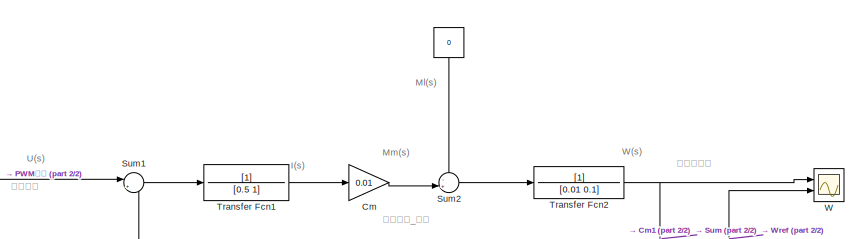
[diagram: root canvas - part 1/2, top right region]
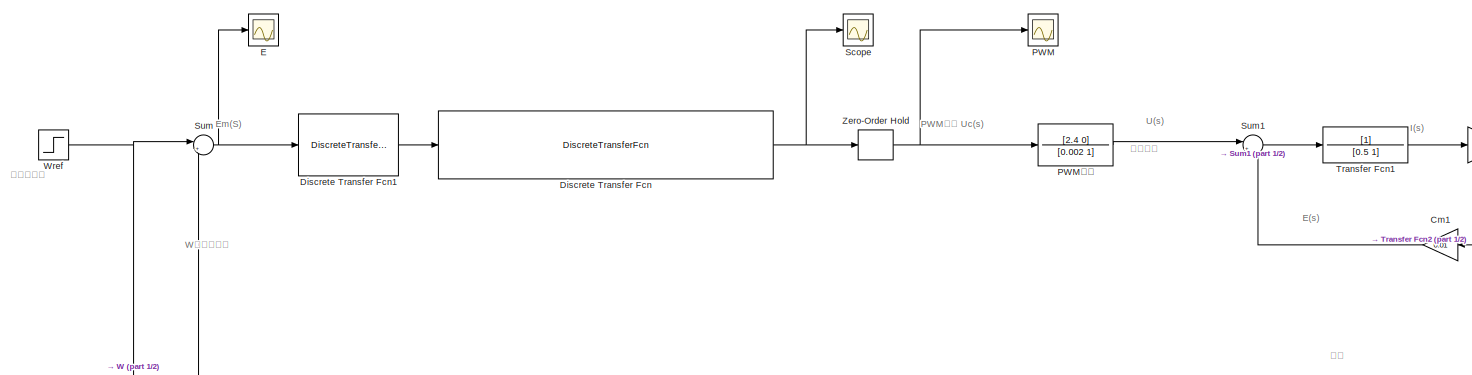
[diagram: root canvas - part 2/2, full width, middle band]
MODEL slx_3e21689289b2
KIND model
CONFIG AbsTol = auto
CONFIG EnableMultiTasking = off
CONFIG FixedStep = auto
CONFIG MaxStep = auto
CONFIG MinStep = auto
CONFIG RelTol = 1e-3
CONFIG SampleTimeConstraint = Unconstrained
CONFIG Solver = VariableStepAuto
CONFIG SolverName = VariableStepAuto
CONFIG StartTime = 0.0
CONFIG StopTime = 10
BLOCK [Constant]  
  Value = 0
BLOCK [Gain] Cm
  Gain = 0.01
  OutDataTypeStr = Inherit: Inherit via internal rule
  ParamDataTypeStr = Inherit: Inherit via internal rule
  SaturateOnIntegerOverflow = off
BLOCK [Gain] Cm1
  Gain = 0.01
  OutDataTypeStr = Inherit: Inherit via internal rule
  ParamDataTypeStr = Inherit: Inherit via internal rule
  SaturateOnIntegerOverflow = off
BLOCK [DiscreteTransferFcn] Discrete Transfer Fcn
  Denominator = [1 -2.892 2.791 -0.90565 0.005976 0]
  InputPortMap = u0
  Numerator = [0.000001208 0]
  Ports = [1, 1]
  SampleTime = 0.05
BLOCK [DiscreteTransferFcn] Discrete Transfer Fcn1
  Denominator = [1 -1]
  InputPortMap = u0
  Ports = [1, 1]
  SampleTime = 0.05
BLOCK [Scope] E
  Floating = off
  NumInputPorts = 1
  Ports = [1]
  ScopeSpecificationString = Simulink.scopes.TimeScopeBlockCfg('CurrentConfiguration', extmgr.ConfigurationSet(extmgr.Configuration('Core','General UI',true),extmgr.Configuration('Core','Source UI',true),extmgr.Configuration('Sources','WiredSimulink',true,'DataLoggingVariableName','ScopeData1'),extmgr.Configuration('Visuals','Time Domain',true,'SerializedDisplays',{struct('MinYLimReal','-0.59166','MaxYLimReal','1.46316','YLab...<+1442ch>
BLOCK [Scope] PWM
  Floating = off
  NumInputPorts = 1
  Ports = [1]
  ScopeSpecificationString = Simulink.scopes.TimeScopeBlockCfg('CurrentConfiguration', extmgr.ConfigurationSet(extmgr.Configuration('Core','General UI',true),extmgr.Configuration('Core','Source UI',true),extmgr.Configuration('Sources','WiredSimulink',true,'DataLoggingVariableName','ScopeData2'),extmgr.Configuration('Visuals','Time Domain',true,'SerializedDisplays',{struct('MinYLimReal','-11.60328','MaxYLimReal','94.26744','YL...<+1479ch>
BLOCK [TransferFcn] PWM功放
  Denominator = [0.002 1]
  Numerator = [2.4 0]
BLOCK [Scope] Scope
  Floating = off
  NumInputPorts = 1
  Ports = [1]
  ScopeSpecificationString = Simulink.scopes.TimeScopeBlockCfg('CurrentConfiguration', extmgr.ConfigurationSet(extmgr.Configuration('Core','General UI',true),extmgr.Configuration('Core','Source UI',true),extmgr.Configuration('Sources','WiredSimulink',true,'DataLoggingVariableName','ScopeData3'),extmgr.Configuration('Visuals','Time Domain',true,'SerializedDisplays',{struct('MinYLimReal','-1.19692','MaxYLimReal','22.68469','YLa...<+1428ch>
BLOCK [Sum] Sum
  IconShape = round
  InputSameDT = off
  Inputs = |+-
  OutDataTypeStr = Inherit: Inherit via internal rule
  Ports = [2, 1]
  SaturateOnIntegerOverflow = off
BLOCK [Sum] Sum1
  IconShape = round
  InputSameDT = off
  Inputs = |+-
  OutDataTypeStr = Inherit: Inherit via internal rule
  Ports = [2, 1]
  SaturateOnIntegerOverflow = off
BLOCK [Sum] Sum2
  IconShape = round
  InputSameDT = off
  Inputs = -+|
  OutDataTypeStr = Inherit: Inherit via internal rule
  Ports = [2, 1]
  SaturateOnIntegerOverflow = off
BLOCK [TransferFcn] Transfer Fcn1
  Denominator = [0.5 1]
BLOCK [TransferFcn] Transfer Fcn2
  Denominator = [0.01 0.1]
BLOCK [Scope] W
  Floating = off
  NumInputPorts = 2
  Ports = [2]
  ScopeSpecificationString = Simulink.scopes.TimeScopeBlockCfg('CurrentConfiguration', extmgr.ConfigurationSet(extmgr.Configuration('Core','General UI',true),extmgr.Configuration('Core','Source UI',true),extmgr.Configuration('Sources','WiredSimulink',true),extmgr.Configuration('Visuals','Time Domain',true,'SerializedDisplays',{struct('MinYLimReal','-24.96323','MaxYLimReal','224.66907','YLabelReal','','MinYLimMag','0.00000','M...<+1427ch>
BLOCK [Step] Wref
  SampleTime = 0
  Time = 0
BLOCK [ZeroOrderHold] Zero-Order Hold
  SampleTime = 0.05
ANNOTATION (root): W实际角速度
ANNOTATION (root): 被控对象_电机
ANNOTATION (root): 反馈
ANNOTATION (root): E(s)
ANNOTATION (root): Em(S)
ANNOTATION (root): I(s)
ANNOTATION (root): Ml(s)
ANNOTATION (root): Mm(s)
ANNOTATION (root): PWM电压 Uc(s)
ANNOTATION (root): U(s)
ANNOTATION (root): W(s)
ANNOTATION (root): 参考角速度
ANNOTATION (root): 实际角速度
ANNOTATION (root): 输入电压
LINE  :1 -> Sum2:1
LINE Cm1:1 -> Sum1:2
LINE Cm:1 -> Sum2:2
LINE Discrete Transfer Fcn1:1 -> Discrete Transfer Fcn:1
NET Discrete Transfer Fcn:1 -> Scope:1, Zero-Order Hold:1
LINE PWM功放:1 -> Sum1:1
LINE Sum1:1 -> Transfer Fcn1:1
LINE Sum2:1 -> Transfer Fcn2:1
NET Sum:1 -> Discrete Transfer Fcn1:1, E:1
LINE Transfer Fcn1:1 -> Cm:1
NET Transfer Fcn2:1 -> Cm1:1, Sum:2, W:1
NET Wref:1 -> Sum:1, W:2
NET Zero-Order Hold:1 -> PWM:1, PWM功放:1
note: NET lines group one-source signal fan-out (src -> all destinations, sorted); 1:1 wires keep LINE
